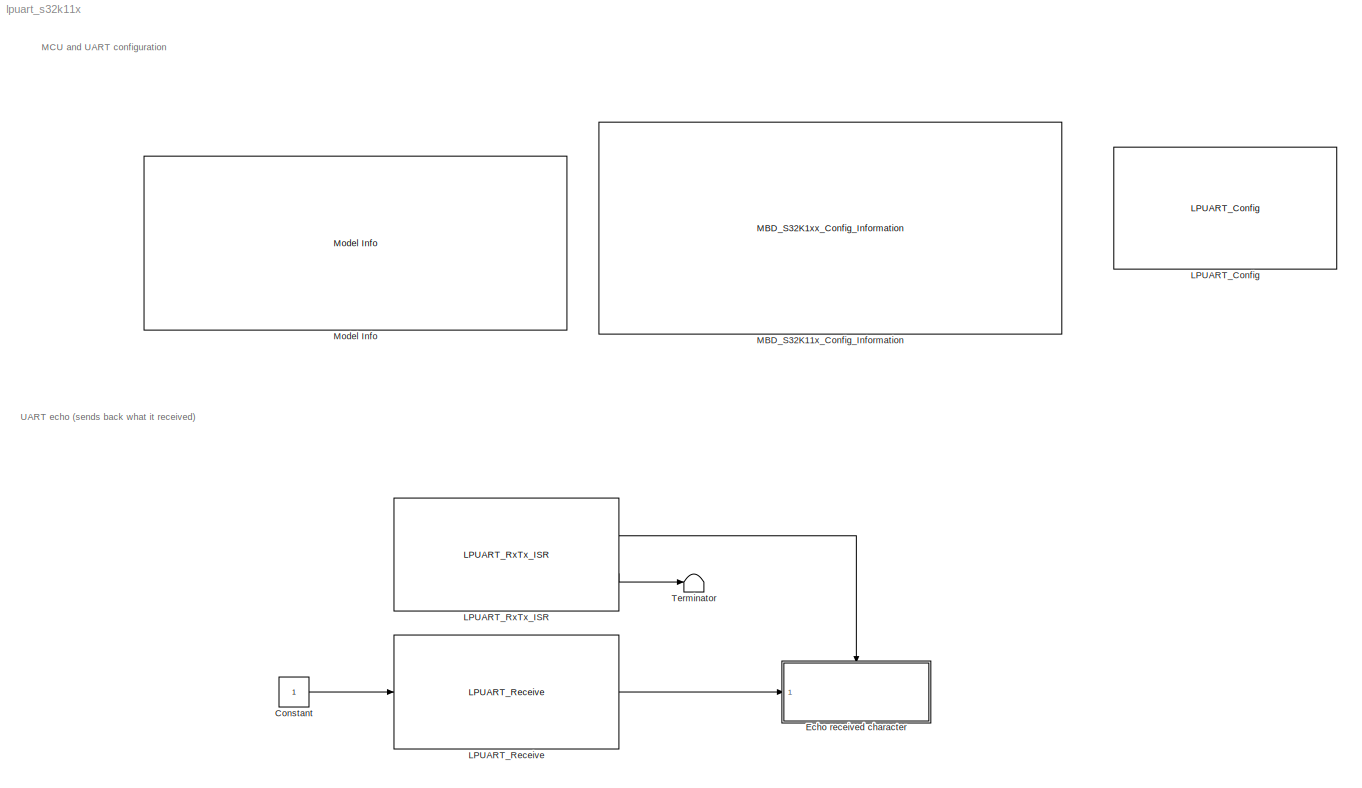
MODEL lpuart_s32k11x
KIND model
CONFIG InitFcn = mbd_s32k_consistency_checks(bdroot(gcs));
BLOCK [Constant] Constant
  OutDataTypeStr = uint32
  SID = 40
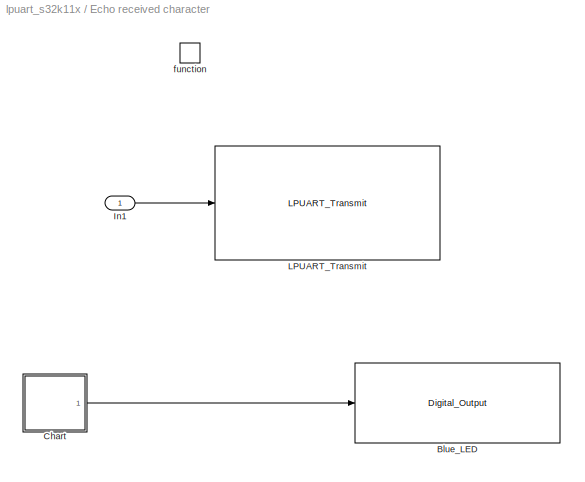
BLOCK [SubSystem] Echo received character
  Ports = [1, 0, 0, 1]
  RTWSystemCode = Nonreusable function
  RequestExecContextInheritance = off
  SID = 9
  TreatAsAtomicUnit = on
  Variant = off
BLOCK [Reference] Echo received character/Blue_LED  REF=mbd_s32k1xx_ec_toolbox/GPIO Blocks/Digital_Output
  Ports = [1]
  SID = 43
  SourceBlock = mbd_s32k1xx_ec_toolbox/GPIO Blocks/Digital_Output
  SourceType = gpio_s32k_output
  drive_strength = Low
  gpio_pin = PTE8: [PTE8 | Port E I/O]
  init_val = Low
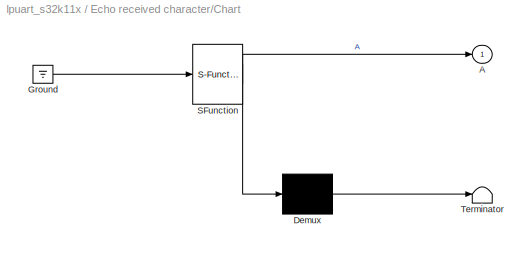
BLOCK [SubSystem] Echo received character/Chart
  ErrorFcn = Stateflow.Translate.translate
  PermitHierarchicalResolution = ExplicitOnly
  Ports = [0, 1]
  RequestExecContextInheritance = off
  SFBlockType = Chart
  SID = 44
  TreatAsAtomicUnit = on
  Variant = off
BLOCK [Outport] Echo received character/Chart/ A
  IconDisplay = Port number
  SID = 44::6
BLOCK [Demux] Echo received character/Chart/ Demux 
  Outputs = 1
  Ports = [1, 1]
  SID = 44::40
BLOCK [Ground] Echo received character/Chart/ Ground 
  SID = 44::42
BLOCK [S-Function] Echo received character/Chart/ SFunction 
  EnableBusSupport = off
  FunctionName = sf_sfun
  PortCounts = [1 2]
  Ports = [1, 2]
  SFcnIsStateOwnerBlock = off
  SFunctionDeploymentMode = off
  SID = 44::39
  Tag = Stateflow S-Function lpuart_s32k11x 3
BLOCK [Terminator] Echo received character/Chart/ Terminator 
  SID = 44::41
BLOCK [Inport] Echo received character/In1
  IconDisplay = Port number
  SID = 39
BLOCK [Reference] Echo received character/LPUART_Transmit  REF=mbd_s32k1xx_ec_toolbox/Communication Blocks/UART Blocks/LPUART_Transmit
  Ports = [1]
  Priority = 2
  SID = 38
  SourceBlock = mbd_s32k1xx_ec_toolbox/Communication Blocks/UART Blocks/LPUART_Transmit
  SourceType = lpuart_s32k_transmit
  instance = 0
BLOCK [TriggerPort] Echo received character/function
  Ports = []
  SID = 10
  StatesWhenEnabling = held
  TriggerType = function-call
  VariantControl = Variant
BLOCK [Reference] LPUART_Config  REF=mbd_s32k1xx_ec_toolbox/Communication Blocks/UART Blocks/LPUART_Config
  Ports = []
  Priority = 1
  SID = 34
  SourceBlock = mbd_s32k1xx_ec_toolbox/Communication Blocks/UART Blocks/LPUART_Config
  SourceType = lpuart_s32k_config
  baudrate = 115200
  bothedge = rising edge
  brk13 = 10 - 13 bit times
  cts = PTA0: [LPUART0_CTS | Clear To Send (bar)]
  databits = 8
  instance = 0
  lbkde = 10 - 13 bit times
  parity = None
  rts = PTA1: [LPUART0_RTS | Request To Send]
  rx = PTB0: [LPUART0_RX | Receive]
  rxinv = off
  sbns = 1
  show_adv_opts = off
  tx = PTB1: [LPUART0_TX | Transmit]
  txinv = off
BLOCK [Reference] LPUART_Receive  REF=mbd_s32k1xx_ec_toolbox/Communication Blocks/UART Blocks/LPUART_Receive
  Ports = [1, 1]
  Priority = 1
  SID = 36
  SourceBlock = mbd_s32k1xx_ec_toolbox/Communication Blocks/UART Blocks/LPUART_Receive
  SourceType = lpuart_s32k_receive
  instance = 0
BLOCK [Reference] LPUART_RxTx_ISR  REF=mbd_s32k1xx_ec_toolbox/Communication Blocks/UART Blocks/LPUART_RxTx_ISR
  Ports = [0, 2]
  Priority = 2
  SID = 35
  SourceBlock = mbd_s32k1xx_ec_toolbox/Communication Blocks/UART Blocks/LPUART_RxTx_ISR
  SourceType = lpuart_s32k_rxtx_isr
  ilie = off
  instance = 0
  prio = 1
  rie = on
  tcie = off
  tie = off
BLOCK [Reference] MBD_S32K11x_Config_Information  REF=mbd_s32k1xx_ec_toolbox/MBD_S32K1xx_Config_Information
  ADC_PcrCheckEnDis = on
  AMMCLIB_PcrCheckEnDis = on
  CMP_PcrCheckEnDis = on
  CSEc_PcrCheckEnDis = on
  ConfigParams_PcrCheckEnDis = on
  FM_PcrCheckEnDis = on
  FTM_Dual_Edge_Inputs_PcrCheckEnDis = on
  FTM_Hall_Sensor_Inputs_PcrCheckEnDis = on
  FTM_Input_Edge_Inputs_PcrCheckEnDis = on
  FTM_PWM_PcrCheckEnDis = on
  FTM_Quadrature_Inputs_PcrCheckEnDis = on
  FlexCAN_PcrCheckEnDis = on
  FlexIO_PcrCheckEnDis = on
  GPIO_InputPcrCheckEnDis = on
  GPIO_OutputPcrCheckEnDis = on
  LIN_PcrCheckEnDis = on
  LPI2C_PcrCheckEnDis = on
  LPSPI_PcrCheckEnDis = on
  LPTMR_PcrCheckEnDis = on
  LPUART_PcrCheckEnDis = on
  ModelRef_PcrCheckEnDis = on
  PDB0_PcrCheckEnDis = on
  PIT_PcrCheckEnDis = on
  Ports = []
  Profile_PcrCheckEnDis = on
  RTC_PcrCheckEnDis = on
  SBC_PcrCheckEnDis = on
  SID = 33
  SourceBlock = mbd_s32k1xx_ec_toolbox/MBD_S32K1xx_Config_Information
  SourceType = MBDTBX_EC_S32K
  WDOG_PcrCheckEnDis = on
  config_params = []
  disp_str = Target : S32K144-64KB_SRAM\nPackage : 100-pin\nSystem clock : 80 MHz\nXTAL clock : External 8 MHz\nCompiler : IAR\nTarget Type : FLASH\nDownload Code after build : off\nStep Tick Interrupt Priority : 15
  ds_import_enable = on
  eDMA_PcrCheckEnDis = on
  gcc_target_assemble_opts = -mcpu=cortex-m0plus -mthumb -g
  gcc_target_compile_opts = -mcpu=cortex-m0plus -mthumb -O1 -g -gstrict-dwarf
  gcc_target_default_lcf = on
  gcc_target_link_opts = -mcpu=cortex-m0plus -mthumb
  gcc_target_user_lcf = S32K116_17_flash.ld
  ghs_target_assemble_opts = -mcpu=cortexm0plus -mthumb -fsoft --gnu_asm
  ghs_target_compile_opts = -mcpu=cortexm0plus -mthumb -fsoft -Ogeneral -Wundef -Wimplicit-int -Wshadow -Wtrigraphs --no_commons --gnu_asm -gnu99 -gdwarf-2 -G
  ghs_target_default_lcf = on
  ghs_target_link_opts = -mcpu=cortexm0plus -mthumb -fsoft
  ghs_target_user_lcf = S32K116_17_flash.ld
  iar_target_assemble_opts = --thumb
  iar_target_compile_opts = --thumb -Ol -e --debug --dlib_config normal
  iar_target_default_lcf = on
  iar_target_link_opts = --no_exceptions --vfe --inline
  iar_target_user_lcf = S32K116_17_flash.icf
  mbdt_ver = 0
  mcu_steptick_prio = 3
  mcu_steptick_timer = LPIT Channel 0
  mcu_system_clock_freq = 40
  mcu_target_name = S32K116
  mcu_target_package = 48-LQFP
  mcu_target_sram_size = 17KB
  mcu_xtal_freq = External 40
  pil_download_enable = off
  pil_download_rate = 57600
  pil_opensda_drive = Custom
  pil_opensda_drive_custom = D
  pil_uart_instance = 0
  pil_uart_rx = PTA2: [LPUART0_RX | Receive]
  pil_uart_tx = PTA3: [LPUART0_TX | Transmit]
  rbl_com_port = Custom
  rbl_com_port_custom = COM1
  rbl_download_enable = on
  rbl_download_interface = OpenSDA
  rbl_restart_request = off
  rbl_start_delay = 5000
  target_compiler = GCC
  target_memory = FLASH
BLOCK [Reference] Model Info  REF=simulink/Model-Wide\nUtilities/Model Info
  DisplayStringWithTags = Model Name: %<ModelName>\n\nDescription: %<Description>
  Frame = off
  HorizontalTextAlignment = Left
  LeftAlignmentValue = 0.02
  MaskDisplayString = Model Name: lpuart_s32k11x\\n\\nDescription: This demo shows how to configure the S32K116/S32K118 EVB to send back any character\\nreceived via UART interface. \\n\\nHW prerequisite:\\n- S32K116/S32K118 EVB\\n\\nVerification:\\n- Test is succesful if the character you type in is displayed back in a host UART terminal\\n- Use any UART terminal to receive the message from the EVB. \\n- Each time a c...<+51ch>
  Ports = []
  SID = 27
  SourceBlock = simulink/Model-Wide\nUtilities/Model Info
  SourceProductBaseCode = SL
  SourceProductName = Simulink
  SourceType = CMBlock
BLOCK [Terminator] Terminator
  SID = 17
ANNOTATION (root): MCU and UART configuration
ANNOTATION (root): UART echo (sends back what it received)
LINE Constant:1 -> LPUART_Receive:1
LINE Echo received character/Chart/ Demux :1 -> Echo received character/Chart/ Terminator :1
LINE Echo received character/Chart/ Ground :1 -> Echo received character/Chart/ SFunction :1
LINE Echo received character/Chart/ SFunction :1 -> Echo received character/Chart/ Demux :1
LINE Echo received character/Chart/ SFunction :2 -> Echo received character/Chart/ A:1
LINE Echo received character/Chart:1 -> Echo received character/Blue_LED:1
LINE Echo received character/In1:1 -> Echo received character/LPUART_Transmit:1
LINE LPUART_Receive:1 -> Echo received character:1
LINE LPUART_RxTx_ISR:1 -> Echo received character:trigger
LINE LPUART_RxTx_ISR:2 -> Terminator:1
CHART Echo received character/Chart states=2 transitions=3
  STATE_LABEL 'A'
  STATE_LABEL 'A1'
